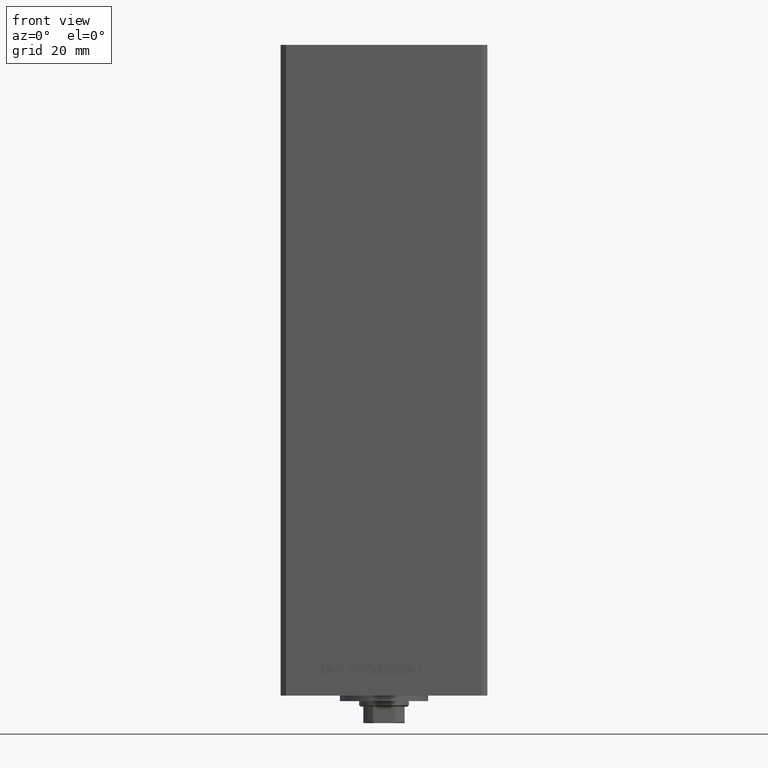
[diagram: clean part render]
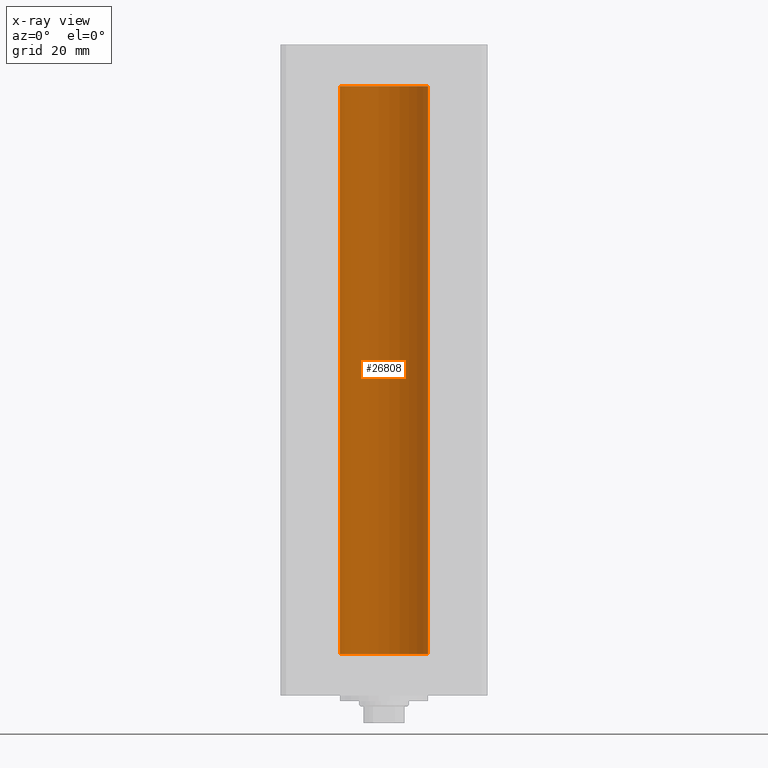
[diagram: x-ray — body ghosted, one internal face saturated and labeled with its STEP entity id]
A machine part, front view, then the same camera in x-ray: the body is ghosted and one INTERNAL B-rep face — a face not visible from any outside direction — is saturated and labeled: STEP entity #26808.
In plain terms, the highlighted cylindrical surface (partial cylindrical patch) has radius 16 mm, axis along (-0, -0, -1).
Its self-contained STEP definition (entity closure, byte-faithful):
#193 = ORIENTED_EDGE ( 'NONE', *, *, #6601, .F. ) ;
#526 = DIRECTION ( 'NONE',  ( -0.000000000000000000, -0.000000000000000000, -1.000000000000000000 ) ) ;
#2134 = EDGE_LOOP ( 'NONE', ( #193, #40923, #9588, #28203 ) ) ;
#2197 = CARTESIAN_POINT ( 'NONE',  ( 16.00000000000000000, 1.959434878635765131E-15, 206.0000000000000000 ) ) ;
#2417 = LINE ( 'NONE', #33335, #43574 ) ;
#4299 = AXIS2_PLACEMENT_3D ( 'NONE', #14899, #526, #38399 ) ;
#4475 = DIRECTION ( 'NONE',  ( 1.000000000000000000, 0.000000000000000000, 0.000000000000000000 ) ) ;
#4775 = AXIS2_PLACEMENT_3D ( 'NONE', #8196, #23274, #4475 ) ;
#5873 = CARTESIAN_POINT ( 'NONE',  ( -16.00000000000000000, 0.000000000000000000, 206.0000000000000000 ) ) ;
#5989 = CARTESIAN_POINT ( 'NONE',  ( -16.00000000000000000, 0.000000000000000000, 0.000000000000000000 ) ) ;
#6601 = EDGE_CURVE ( 'NONE', #35906, #8932, #31658, .T. ) ;
#8196 = CARTESIAN_POINT ( 'NONE',  ( 0.000000000000000000, 0.000000000000000000, 0.000000000000000000 ) ) ;
#8932 = VERTEX_POINT ( 'NONE', #44249 ) ;
#9588 = ORIENTED_EDGE ( 'NONE', *, *, #15959, .T. ) ;
#12597 = EDGE_CURVE ( 'NONE', #8932, #14218, #43476, .T. ) ;
#13586 = DIRECTION ( 'NONE',  ( -0.000000000000000000, -0.000000000000000000, -1.000000000000000000 ) ) ;
#14218 = VERTEX_POINT ( 'NONE', #5989 ) ;
#14899 = CARTESIAN_POINT ( 'NONE',  ( 0.000000000000000000, 0.000000000000000000, 206.0000000000000000 ) ) ;
#15383 = DIRECTION ( 'NONE',  ( 1.000000000000000000, 0.000000000000000000, 0.000000000000000000 ) ) ;
#15959 = EDGE_CURVE ( 'NONE', #47796, #14218, #2417, .T. ) ;
#23274 = DIRECTION ( 'NONE',  ( -0.000000000000000000, 0.000000000000000000, 1.000000000000000000 ) ) ;
#26224 = VECTOR ( 'NONE', #13586, 1000.000000000000000 ) ;
#26503 = FACE_OUTER_BOUND ( 'NONE', #2134, .T. ) ;
#26749 = CARTESIAN_POINT ( 'NONE',  ( 0.000000000000000000, 0.000000000000000000, 206.0000000000000000 ) ) ;
#26808 = ADVANCED_FACE ( 'NONE', ( #26503 ), #48785, .F. ) ;
#28203 = ORIENTED_EDGE ( 'NONE', *, *, #12597, .F. ) ;
#29384 = DIRECTION ( 'NONE',  ( -0.000000000000000000, -0.000000000000000000, -1.000000000000000000 ) ) ;
#31658 = LINE ( 'NONE', #2197, #26224 ) ;
#33335 = CARTESIAN_POINT ( 'NONE',  ( -16.00000000000000000, 0.000000000000000000, 206.0000000000000000 ) ) ;
#33683 = DIRECTION ( 'NONE',  ( -0.000000000000000000, 0.000000000000000000, 1.000000000000000000 ) ) ;
#35643 = CIRCLE ( 'NONE', #43514, 16.00000000000000000 ) ;
#35906 = VERTEX_POINT ( 'NONE', #42634 ) ;
#38399 = DIRECTION ( 'NONE',  ( -1.000000000000000000, 0.000000000000000000, 0.000000000000000000 ) ) ;
#40923 = ORIENTED_EDGE ( 'NONE', *, *, #48789, .T. ) ;
#42634 = CARTESIAN_POINT ( 'NONE',  ( 16.00000000000000000, 1.959434878635765131E-15, 206.0000000000000000 ) ) ;
#43476 = CIRCLE ( 'NONE', #4775, 16.00000000000000000 ) ;
#43514 = AXIS2_PLACEMENT_3D ( 'NONE', #26749, #33683, #15383 ) ;
#43574 = VECTOR ( 'NONE', #29384, 1000.000000000000000 ) ;
#44249 = CARTESIAN_POINT ( 'NONE',  ( 16.00000000000000000, 1.959434878635765131E-15, 0.000000000000000000 ) ) ;
#47796 = VERTEX_POINT ( 'NONE', #5873 ) ;
#48785 = CYLINDRICAL_SURFACE ( 'NONE', #4299, 16.00000000000000000 ) ;
#48789 = EDGE_CURVE ( 'NONE', #35906, #47796, #35643, .T. ) ;